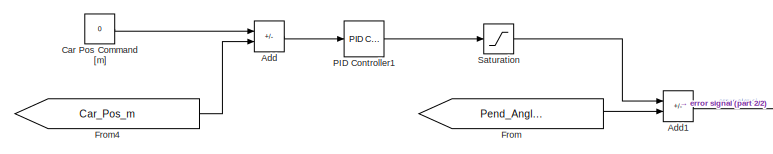
[diagram: root canvas - part 1/2, top left region]
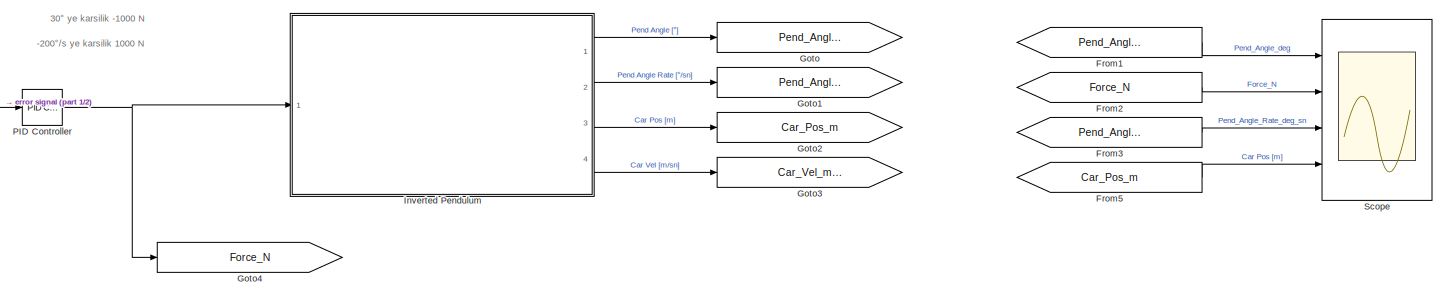
[diagram: root canvas - part 2/2, right side, full height]
MODEL slx_2b183ee0f389
KIND model
CONFIG AbsTol = 1e-3
CONFIG EnableMultiTasking = on
CONFIG FixedStep = 1/100
CONFIG MaxStep = auto
CONFIG MinStep = auto
CONFIG RelTol = 1e-3
CONFIG SampleTimeConstraint = Unconstrained
CONFIG SolverName = ode4
CONFIG StartTime = 0.0
CONFIG StopTime = 20
BLOCK [Sum] Add
  IconShape = rectangular
  Inputs = +-
  Ports = [2, 1]
BLOCK [Sum] Add1
  IconShape = rectangular
  Inputs = +-
  Ports = [2, 1]
BLOCK [Constant] Car Pos Command [m]
  Value = 0
BLOCK [From] From
  GotoTag = Pend_Angle_deg
BLOCK [From] From1
  GotoTag = Pend_Angle_deg
BLOCK [From] From2
  GotoTag = Force_N
BLOCK [From] From3
  GotoTag = Pend_Angle_Rate_deg_sn
BLOCK [From] From4
  GotoTag = Car_Pos_m
BLOCK [From] From5
  GotoTag = Car_Pos_m
BLOCK [Goto] Goto
  GotoTag = Pend_Angle_deg
BLOCK [Goto] Goto1
  GotoTag = Pend_Angle_Rate_deg_sn
BLOCK [Goto] Goto2
  GotoTag = Car_Pos_m
BLOCK [Goto] Goto3
  GotoTag = Car_Vel_m_sn
BLOCK [Goto] Goto4
  GotoTag = Force_N
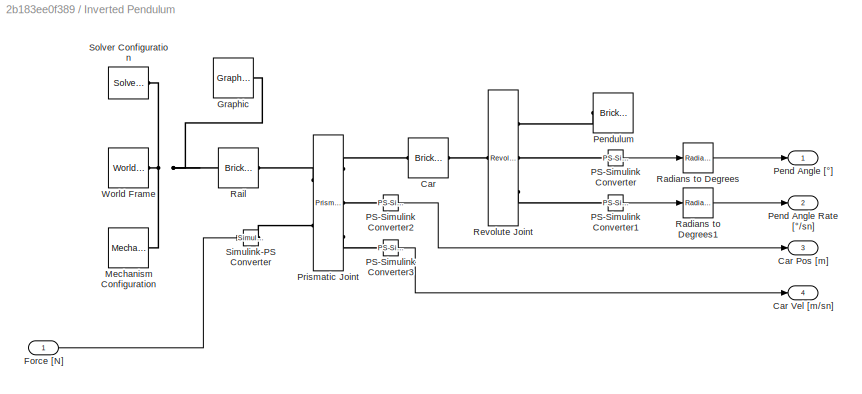
BLOCK [SubSystem] Inverted Pendulum
  Ports = [1, 4]
BLOCK [Reference] Inverted Pendulum/Car  REF=sm_lib/Body Elements/Brick Solid
  Ports = [0, 0, 0, 0, 0, 1, 1]
  SourceBlock = sm_lib/Body Elements/Brick Solid
  SourceType = Brick Solid
BLOCK [Outport] Inverted Pendulum/Car Pos [m]
  Port = 3
BLOCK [Outport] Inverted Pendulum/Car Vel [m//sn]
  Port = 4
BLOCK [Inport] Inverted Pendulum/Force [N]
BLOCK [Reference] Inverted Pendulum/Graphic  REF=sm_lib/Body Elements/Graphic
  Ports = [0, 0, 0, 0, 0, 0, 1]
  SourceBlock = sm_lib/Body Elements/Graphic
  SourceType = Graphic
BLOCK [Reference] Inverted Pendulum/Mechanism Configuration  REF=sm_lib/Utilities/Mechanism
Configuration
  Ports = [0, 0, 0, 0, 0, 0, 1]
  SourceBlock = sm_lib/Utilities/Mechanism\nConfiguration
  SourceType = Mechanism\nConfiguration
BLOCK [Reference] Inverted Pendulum/PS-Simulink Converter  REF=nesl_utility/PS-Simulink
Converter
  Ports = [0, 1, 0, 0, 0, 1]
  SourceBlock = nesl_utility/PS-Simulink\nConverter
  SourceType = PS-Simulink\nConverter
BLOCK [Reference] Inverted Pendulum/PS-Simulink Converter1  REF=nesl_utility/PS-Simulink
Converter
  Ports = [0, 1, 0, 0, 0, 1]
  SourceBlock = nesl_utility/PS-Simulink\nConverter
  SourceType = PS-Simulink\nConverter
BLOCK [Reference] Inverted Pendulum/PS-Simulink Converter2  REF=nesl_utility/PS-Simulink
Converter
  Ports = [0, 1, 0, 0, 0, 1]
  SourceBlock = nesl_utility/PS-Simulink\nConverter
  SourceType = PS-Simulink\nConverter
BLOCK [Reference] Inverted Pendulum/PS-Simulink Converter3  REF=nesl_utility/PS-Simulink
Converter
  Ports = [0, 1, 0, 0, 0, 1]
  SourceBlock = nesl_utility/PS-Simulink\nConverter
  SourceType = PS-Simulink\nConverter
BLOCK [Outport] Inverted Pendulum/Pend Angle Rate [°//sn]
  Port = 2
BLOCK [Outport] Inverted Pendulum/Pend Angle [°]
BLOCK [Reference] Inverted Pendulum/Pendulum  REF=sm_lib/Body Elements/Brick Solid
  Ports = [0, 0, 0, 0, 0, 1]
  SourceBlock = sm_lib/Body Elements/Brick Solid
  SourceType = Brick Solid
BLOCK [Reference] Inverted Pendulum/Prismatic Joint  REF=sm_lib/Joints/Prismatic
Joint
  Ports = [0, 0, 0, 0, 0, 2, 3]
  SourceBlock = sm_lib/Joints/Prismatic\nJoint
  SourceType = Prismatic\nJoint
BLOCK [Reference] Inverted Pendulum/Radians to Degrees  REF=simulink_extras/Transformations/Radians
to Degrees
  Ports = [1, 1]
  SourceBlock = simulink_extras/Transformations/Radians\nto Degrees
  SourceType = RadiansToDegrees
BLOCK [Reference] Inverted Pendulum/Radians to Degrees1  REF=simulink_extras/Transformations/Radians
to Degrees
  Ports = [1, 1]
  SourceBlock = simulink_extras/Transformations/Radians\nto Degrees
  SourceType = RadiansToDegrees
BLOCK [Reference] Inverted Pendulum/Rail  REF=sm_lib/Body Elements/Brick Solid
  Ports = [0, 0, 0, 0, 0, 1, 1]
  SourceBlock = sm_lib/Body Elements/Brick Solid
  SourceType = Brick Solid
BLOCK [Reference] Inverted Pendulum/Revolute Joint  REF=sm_lib/Joints/Revolute Joint
  Ports = [0, 0, 0, 0, 0, 1, 3]
  SourceBlock = sm_lib/Joints/Revolute Joint
  SourceType = Revolute Joint
BLOCK [Reference] Inverted Pendulum/Simulink-PS Converter  REF=nesl_utility/Simulink-PS
Converter
  Ports = [1, 0, 0, 0, 0, 0, 1]
  SourceBlock = nesl_utility/Simulink-PS\nConverter
  SourceType = Simulink-PS\nConverter
BLOCK [Reference] Inverted Pendulum/Solver Configuration  REF=nesl_utility/Solver
Configuration
  Ports = [0, 0, 0, 0, 0, 0, 1]
  SourceBlock = nesl_utility/Solver\nConfiguration
  SourceType = Solver\nConfiguration
BLOCK [Reference] Inverted Pendulum/World Frame  REF=sm_lib/Frames and
Transforms/World Frame
  Ports = [0, 0, 0, 0, 0, 0, 1]
  SourceBlock = sm_lib/Frames and\nTransforms/World Frame
  SourceType = World Frame
BLOCK [Reference] PID Controller  REF=slpidlib/PID Controller
  Ports = [1, 1]
  SourceBlock = slpidlib/PID Controller
  SourceType = PID 1dof
BLOCK [Reference] PID Controller1  REF=slpidlib/PID Controller
  Ports = [1, 1]
  SourceBlock = slpidlib/PID Controller
  SourceType = PID 1dof
BLOCK [Saturate] Saturation
  LowerLimit = -10
  UpperLimit = 10
BLOCK [Scope] Scope
  Floating = off
  NumInputPorts = 4
  Ports = [4]
  ScopeSpecificationString = Simulink.scopes.TimeScopeBlockCfg('CurrentConfiguration', extmgr.ConfigurationSet(extmgr.Configuration('Core','General UI',true),extmgr.Configuration('Core','Source UI',true),extmgr.Configuration('Sources','WiredSimulink',true),extmgr.Configuration('Visuals','Time Domain',true,'SerializedDisplays',{struct('MinYLimReal','-25.40434','MaxYLimReal','25.07458','YLabelReal','','MinYLimMag','0.00000','Ma...<+3878ch>
ANNOTATION (root): -200°/s ye karsilik 1000 N
ANNOTATION (root): 30° ye karsilik -1000 N
LINE Add1:1 -> PID Controller:1
LINE Add:1 -> PID Controller1:1
LINE Car Pos Command [m]:1 -> Add:1
LINE From1:1 -> Scope:1
LINE From2:1 -> Scope:2
LINE From3:1 -> Scope:3
LINE From4:1 -> Add:2
LINE From5:1 -> Scope:4
LINE From:1 -> Add1:2
LINE Inverted Pendulum/Force [N]:1 -> Inverted Pendulum/Simulink-PS Converter:1
LINE Inverted Pendulum/PS-Simulink Converter1:1 -> Inverted Pendulum/Radians to Degrees1:1
LINE Inverted Pendulum/PS-Simulink Converter2:1 -> Inverted Pendulum/Car Pos [m]:1
LINE Inverted Pendulum/PS-Simulink Converter3:1 -> Inverted Pendulum/Car Vel [m//sn]:1
LINE Inverted Pendulum/PS-Simulink Converter:1 -> Inverted Pendulum/Radians to Degrees:1
LINE Inverted Pendulum/Radians to Degrees1:1 -> Inverted Pendulum/Pend Angle Rate [°//sn]:1
LINE Inverted Pendulum/Radians to Degrees:1 -> Inverted Pendulum/Pend Angle [°]:1
LINE Inverted Pendulum:1 -> Goto:1
LINE Inverted Pendulum:2 -> Goto1:1
LINE Inverted Pendulum:3 -> Goto2:1
LINE Inverted Pendulum:4 -> Goto3:1
LINE PID Controller1:1 -> Saturation:1
NET PID Controller:1 -> Goto4:1, Inverted Pendulum:1
LINE Saturation:1 -> Add1:1
PLINE Inverted Pendulum/Car:LConn1 -- Inverted Pendulum/Prismatic Joint:RConn1
PLINE Inverted Pendulum/Car:RConn1 -- Inverted Pendulum/Revolute Joint:LConn1
PNET net1: Inverted Pendulum/Graphic:RConn1 -- Inverted Pendulum/Mechanism Configuration:RConn1 -- Inverted Pendulum/Rail:RConn1 -- Inverted Pendulum/Solver Configuration:RConn1 -- Inverted Pendulum/World Frame:RConn1
PLINE Inverted Pendulum/PS-Simulink Converter1:LConn1 -- Inverted Pendulum/Revolute Joint:RConn3
PLINE Inverted Pendulum/PS-Simulink Converter2:LConn1 -- Inverted Pendulum/Prismatic Joint:RConn2
PLINE Inverted Pendulum/PS-Simulink Converter3:LConn1 -- Inverted Pendulum/Prismatic Joint:RConn3
PLINE Inverted Pendulum/PS-Simulink Converter:LConn1 -- Inverted Pendulum/Revolute Joint:RConn2
PLINE Inverted Pendulum/Pendulum:LConn1 -- Inverted Pendulum/Revolute Joint:RConn1
PLINE Inverted Pendulum/Prismatic Joint:LConn1 -- Inverted Pendulum/Rail:LConn1
PLINE Inverted Pendulum/Prismatic Joint:LConn2 -- Inverted Pendulum/Simulink-PS Converter:RConn1
note: NET lines group one-source signal fan-out (src -> all destinations, sorted); 1:1 wires keep LINE; PNET lines group multi-terminal physical nets as a canonical sorted terminal list (undirected conserving connections); 2-terminal nets keep the pairwise PLINE form
